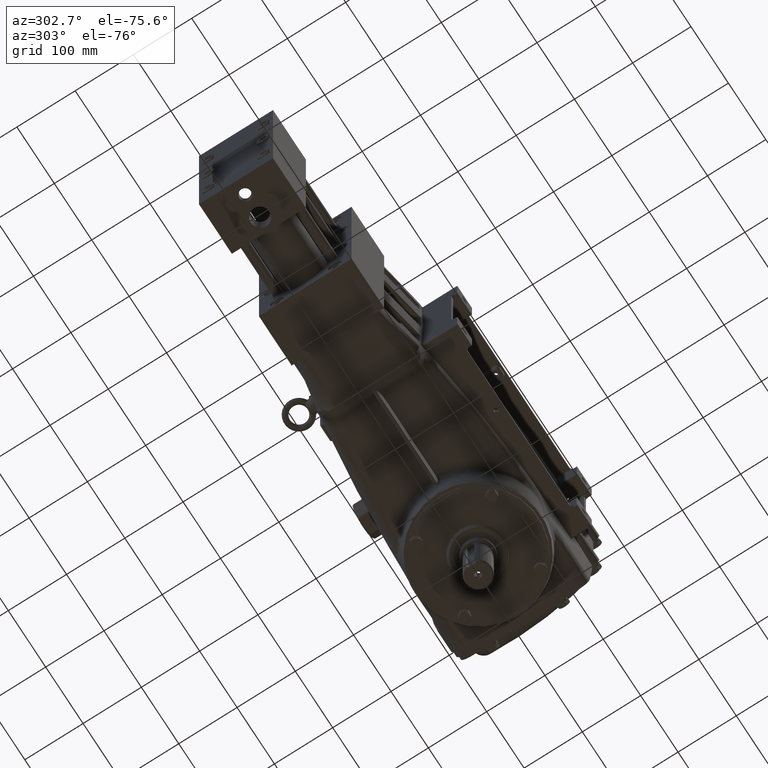
[diagram: clean part render]
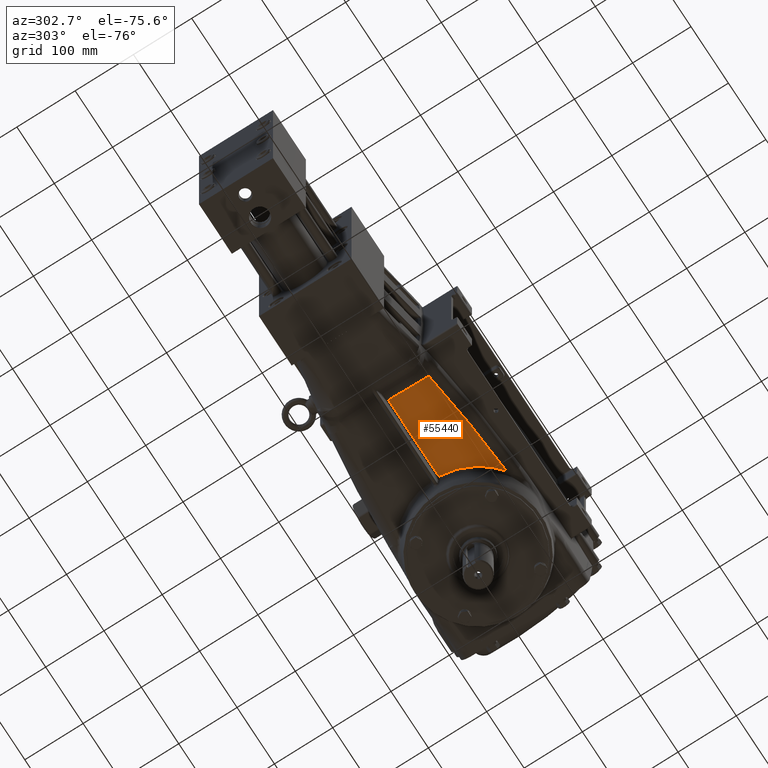
[diagram: same view with one face highlighted and labeled with its STEP entity id]
A machine part, auxiliary view. The second image highlights one B-rep face of the part: STEP entity #55440.
In plain terms, the highlighted cylindrical surface (partial cylindrical patch) has radius 1800 mm, axis along (1, -0, -0).
Its self-contained STEP definition (entity closure, byte-faithful):
#985 = ORIENTED_EDGE ( 'NONE', *, *, #28856, .T. ) ;
#1220 = CARTESIAN_POINT ( 'NONE',  ( -11.48689549967149226, -8.077012802492935961, -5.196215431379319405 ) ) ;
#2192 = EDGE_CURVE ( 'NONE', #61155, #47861, #56308, .T. ) ;
#2736 = DIRECTION ( 'NONE',  ( 0.000000000000000000, 0.000000000000000000, -1.000000000000000000 ) ) ;
#2994 = CARTESIAN_POINT ( 'NONE',  ( -11.01777427464865333, -9.826149646370136992, -5.167258175948659549 ) ) ;
#4770 = CARTESIAN_POINT ( 'NONE',  ( -10.63440946052960179, -10.46501570449838958, -5.145886332172024957 ) ) ;
#4948 = CARTESIAN_POINT ( 'NONE',  ( -14.37870264237131934, -11.08479374028899755, -5.119707369558231136 ) ) ;
#5166 = EDGE_LOOP ( 'NONE', ( #50786, #48406, #8580, #985 ) ) ;
#7715 = CARTESIAN_POINT ( 'NONE',  ( -11.08871865275035873, -9.676262183716179521, -5.171435348120544617 ) ) ;
#8580 = ORIENTED_EDGE ( 'NONE', *, *, #2192, .T. ) ;
#9880 = CARTESIAN_POINT ( 'NONE',  ( -9.651441972660647295, -11.46932845879712914, -5.100595819511899442 ) ) ;
#11564 = FACE_OUTER_BOUND ( 'NONE', #5166, .T. ) ;
#12774 = CARTESIAN_POINT ( 'NONE',  ( -10.98012357869443356, -9.900504183477696785, -5.165066211405673791 ) ) ;
#13193 = CARTESIAN_POINT ( 'NONE',  ( -16.73208998201163311, -10.76942465784996550, -5.133643484345161490 ) ) ;
#14486 = LINE ( 'NONE', #39106, #22340 ) ;
#14542 = CARTESIAN_POINT ( 'NONE',  ( -16.79464190507907162, -8.974825770716144291, -5.192414796677748967 ) ) ;
#14560 = CARTESIAN_POINT ( 'NONE',  ( -11.36895462582208793, -8.856087300656865224, -5.188646233820334963 ) ) ;
#14877 = CARTESIAN_POINT ( 'NONE',  ( -11.47621570102524480, -8.242663848427950413, -5.195514194348327841 ) ) ;
#17908 = CARTESIAN_POINT ( 'NONE',  ( -10.83610434888176677, -11.40737463671437091, -5.103828160289030080 ) ) ;
#18953 = CARTESIAN_POINT ( 'NONE',  ( -10.56115658191406048, -10.56535852587162871, -5.142026609571410667 ) ) ;
#20883 = CARTESIAN_POINT ( 'NONE',  ( -16.79868703029275423, -8.077012799626944073, -5.196215436301595325 ) ) ;
#22239 = CARTESIAN_POINT ( 'NONE',  ( -9.651441972660647295, -11.46932845879712914, -5.100595819511899442 ) ) ;
#22340 = VECTOR ( 'NONE', #53366, 39.37007874015748143 ) ;
#22924 = EDGE_CURVE ( 'NONE', #52935, #61155, #14486, .T. ) ;
#23414 = CARTESIAN_POINT ( 'NONE',  ( -11.39710489820807737, -8.734180563126148655, -5.190432770838086185 ) ) ;
#24345 = CARTESIAN_POINT ( 'NONE',  ( -10.43110538506517670, -10.72739995237557054, -5.135414459992357905 ) ) ;
#27013 = CARTESIAN_POINT ( 'NONE',  ( -10.86172275966212553, -10.11953373698549719, -5.158274144286483676 ) ) ;
#28783 = CARTESIAN_POINT ( 'NONE',  ( -11.28365997179130176, -9.176256252231043575, -5.183270686076544287 ) ) ;
#28856 = EDGE_CURVE ( 'NONE', #47861, #36599, #54336, .T. ) ;
#30844 = CARTESIAN_POINT ( 'NONE',  ( -21.64131179470609112, -7.777023534952098416, 65.66929133858268131 ) ) ;
#32960 = CARTESIAN_POINT ( 'NONE',  ( -16.73208998201163311, -10.76942465784996550, -5.133643484345161490 ) ) ;
#33528 = CARTESIAN_POINT ( 'NONE',  ( -10.48368796256870894, -10.66295017873496676, -5.138070648953320330 ) ) ;
#33840 = CARTESIAN_POINT ( 'NONE',  ( -10.15996499001276732, -11.04301564512164369, -5.122000726478344923 ) ) ;
#34153 = CARTESIAN_POINT ( 'NONE',  ( -11.44670738563469747, -8.489588336042251271, -5.193597701055735705 ) ) ;
#36599 = VERTEX_POINT ( 'NONE', #32960 ) ;
#37038 = AXIS2_PLACEMENT_3D ( 'NONE', #30844, #60266, #2736 ) ;
#37813 = CARTESIAN_POINT ( 'NONE',  ( -15.55653424710320643, -10.94079584118622606, -5.126400686815228092 ) ) ;
#38547 = CARTESIAN_POINT ( 'NONE',  ( -16.79868703029275423, -8.077012799626944073, -5.196215436301595325 ) ) ;
#38568 = CARTESIAN_POINT ( 'NONE',  ( -11.12209508240181854, -9.600561175679242609, -5.173426028039020963 ) ) ;
#38872 = CARTESIAN_POINT ( 'NONE',  ( -11.21593709315804688, -9.371186917043591080, -5.179082564476665596 ) ) ;
#39106 = CARTESIAN_POINT ( 'NONE',  ( -21.64131179470609112, -8.077012799626936967, -5.196215436301595325 ) ) ;
#43023 = CARTESIAN_POINT ( 'NONE',  ( -11.35908622743352403, -8.896355250468834797, -5.188021273809279243 ) ) ;
#43930 = CARTESIAN_POINT ( 'NONE',  ( -16.77244021669357465, -9.872404426594988180, -5.171554968579290090 ) ) ;
#45725 = CYLINDRICAL_SURFACE ( 'NONE', #37038, 70.86614173228348079 ) ;
#46300 = CARTESIAN_POINT ( 'NONE',  ( -10.77529423012091492, -10.26066144753455944, -5.153446341030536004 ) ) ;
#47773 = CARTESIAN_POINT ( 'NONE',  ( -11.48689549967149226, -8.077012802492935961, -5.196215431379319405 ) ) ;
#47861 = VERTEX_POINT ( 'NONE', #9880 ) ;
#48406 = ORIENTED_EDGE ( 'NONE', *, *, #22924, .T. ) ;
#50786 = ORIENTED_EDGE ( 'NONE', *, *, #53198, .T. ) ;
#52935 = VERTEX_POINT ( 'NONE', #20883 ) ;
#52996 = CARTESIAN_POINT ( 'NONE',  ( -12.01848769326059951, -11.31808298138299484, -5.108421112649686791 ) ) ;
#53132 = CARTESIAN_POINT ( 'NONE',  ( -9.918056198750159425, -11.26916018929730612, -5.111039276704645751 ) ) ;
#53198 = EDGE_CURVE ( 'NONE', #36599, #52935, #59571, .T. ) ;
#53366 = DIRECTION ( 'NONE',  ( 1.000000000000000000, -0.000000000000000000, -0.000000000000000000 ) ) ;
#54336 = B_SPLINE_CURVE_WITH_KNOTS ( 'NONE', 3,
 ( #57435, #17908, #52996, #4948, #37813, #13193 ),
 .UNSPECIFIED., .F., .F.,
 ( 4, 2, 4 ),
 ( 0.04389072724056460040, 0.5219453636202823210, 1.000000000000000000 ),
 .UNSPECIFIED. ) ;
#55440 = ADVANCED_FACE ( 'NONE', ( #11564 ), #45725, .T. ) ;
#56308 = B_SPLINE_CURVE_WITH_KNOTS ( 'NONE', 3,
 ( #47773, #14877, #34153, #23414, #14560, #43023, #57883, #28783, #38872, #38568, #7715, #2994, #12774, #27013, #46300, #4770, #18953, #33528, #24345, #60841, #33840, #53132, #22239 ),
 .UNSPECIFIED., .F., .F.,
 ( 4, 1, 2, 2, 1, 2, 2, 2, 2, 1, 2, 2, 4 ),
 ( 0.5349815307263874331, 0.5931088393855903362, 0.6221724937151915658, 0.6367043208799922915, 0.6512361480447929063, 0.7093634567039948102, 0.7384271110335958177, 0.7674907653631968252, 0.8256180740223992842, 0.8546817283520000696, 0.8692135555168003513, 0.8837453826816004110, 1.000000000000000000 ),
 .UNSPECIFIED. ) ;
#57435 = CARTESIAN_POINT ( 'NONE',  ( -9.651441972660647295, -11.46932845879712914, -5.100595819511899442 ) ) ;
#57883 = CARTESIAN_POINT ( 'NONE',  ( -11.33828435417838598, -8.976597097509962708, -5.186708247956319795 ) ) ;
#59571 =( BOUNDED_CURVE ( )  B_SPLINE_CURVE ( 3, ( #62282, #43930, #14542, #38547 ),
 .UNSPECIFIED., .F., .T. ) 
 B_SPLINE_CURVE_WITH_KNOTS ( ( 4, 4 ),
 ( 3.099353990276439319, 3.137359459100741876 ),
 .UNSPECIFIED. ) 
 CURVE ( )  GEOMETRIC_REPRESENTATION_ITEM ( )  RATIONAL_B_SPLINE_CURVE ( ( 1.000000000000000000, 0.9998796356503556471, 0.9998796356503556471, 1.000000000000000000 ) ) 
 REPRESENTATION_ITEM ( '' )  );
#60266 = DIRECTION ( 'NONE',  ( 1.000000000000000000, -0.000000000000000000, -0.000000000000000000 ) ) ;
#60841 = CARTESIAN_POINT ( 'NONE',  ( -10.40431876600295524, -10.75935166594092784, -5.134075517361357477 ) ) ;
#61155 = VERTEX_POINT ( 'NONE', #1220 ) ;
#62282 = CARTESIAN_POINT ( 'NONE',  ( -16.73208998201163311, -10.76942465784996550, -5.133643484345161490 ) ) ;